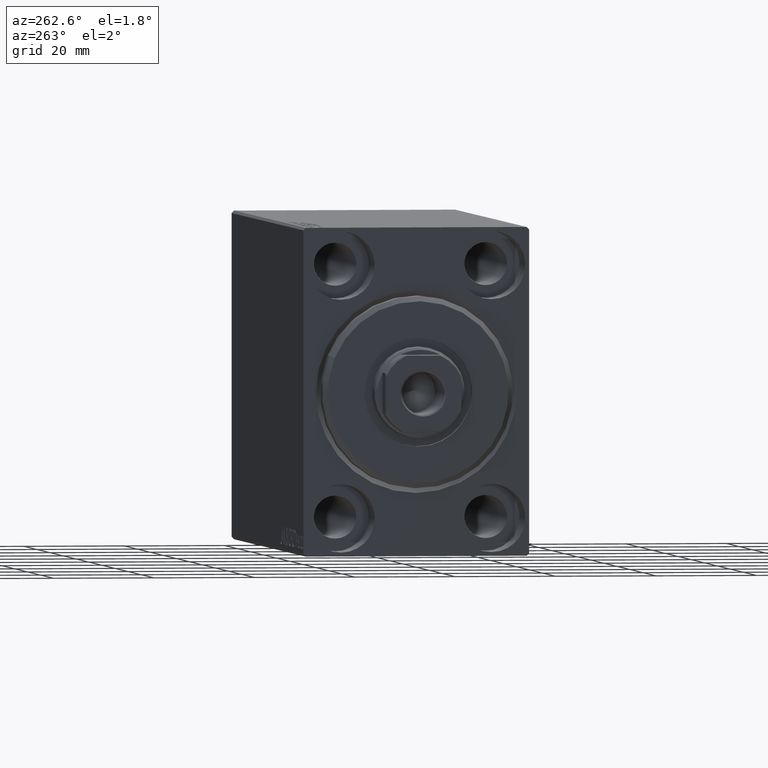
[diagram: clean part render]
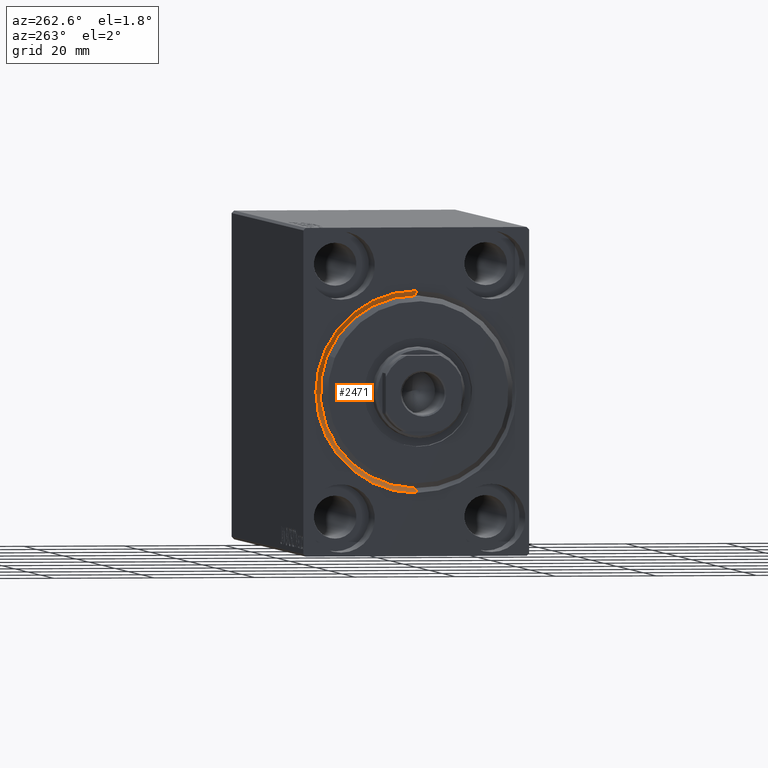
[diagram: same view with one face highlighted and labeled with its STEP entity id]
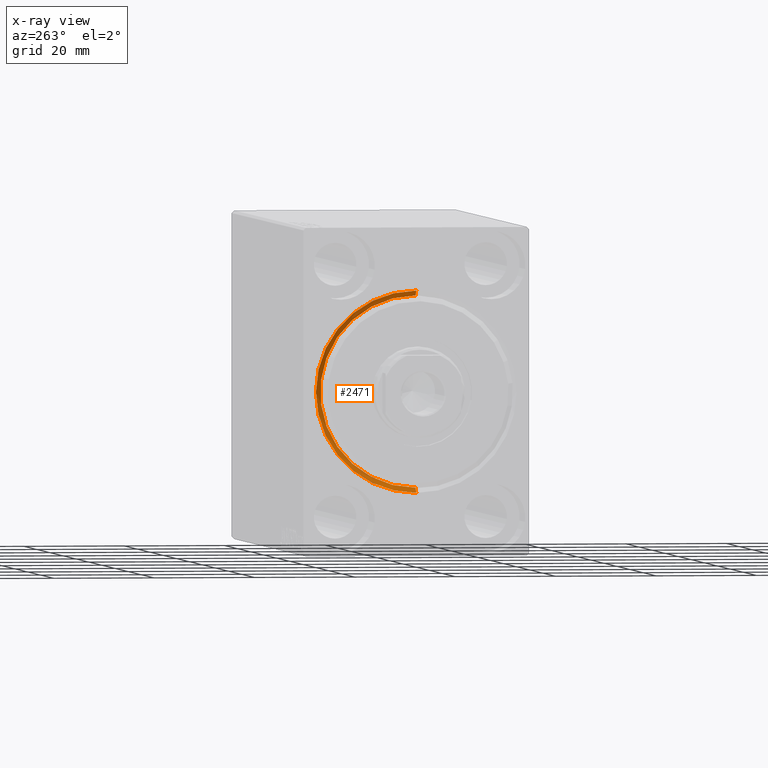
[diagram: x-ray of the same camera — body ghosted, the highlighted face saturated]
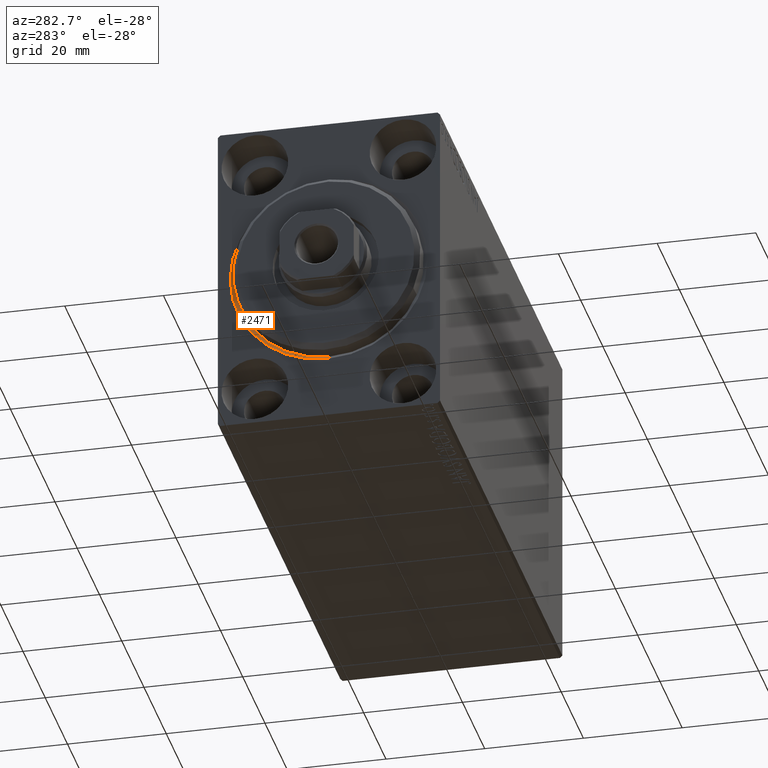
[diagram: same view with one face highlighted and labeled with its STEP entity id]
A machine part, auxiliary view. The second image highlights one B-rep face of the part: STEP entity #2471.
The next image is the same camera in x-ray: the body ghosted, the highlighted face saturated — about 0% of this face is hidden behind the body in this view.
A second angle (auxiliary view) of the same face is appended — the face is thin or edge-on in the first view.
In plain terms, the highlighted conical surface has half-angle 45 deg.
Its self-contained STEP definition (entity closure, byte-faithful):
#147 = LINE ( 'NONE', #14283, #2733 ) ;
#799 = ORIENTED_EDGE ( 'NONE', *, *, #28710, .F. ) ;
#1025 = EDGE_CURVE ( 'NONE', #5317, #37700, #35355, .T. ) ;
#1392 = CONICAL_SURFACE ( 'NONE', #28284, 19.00000000000000000, 0.7853981633974500554 ) ;
#1593 = CARTESIAN_POINT ( 'NONE',  ( 1.000000000000000888, 0.000000000000000000, 0.000000000000000000 ) ) ;
#2033 = DIRECTION ( 'NONE',  ( 0.000000000000000000, 0.000000000000000000, 1.000000000000000000 ) ) ;
#2471 = ADVANCED_FACE ( 'NONE', ( #22194 ), #1392, .F. ) ;
#2733 = VECTOR ( 'NONE', #10951, 1000.000000000000000 ) ;
#4598 = CARTESIAN_POINT ( 'NONE',  ( 1.000000000000000888, 0.000000000000000000, 19.00000000000000000 ) ) ;
#5317 = VERTEX_POINT ( 'NONE', #19717 ) ;
#6500 = DIRECTION ( 'NONE',  ( -1.000000000000000000, 0.000000000000000000, 0.000000000000000000 ) ) ;
#9013 = EDGE_CURVE ( 'NONE', #30367, #11248, #147, .T. ) ;
#9757 = ORIENTED_EDGE ( 'NONE', *, *, #9013, .T. ) ;
#10257 = CARTESIAN_POINT ( 'NONE',  ( 1.000000000000000888, 0.000000000000000000, 0.000000000000000000 ) ) ;
#10951 = DIRECTION ( 'NONE',  ( -0.7071067811865463515, 0.000000000000000000, 0.7071067811865487940 ) ) ;
#11248 = VERTEX_POINT ( 'NONE', #37475 ) ;
#12116 = CARTESIAN_POINT ( 'NONE',  ( 1.000000000000000888, 2.326828918379970970E-15, -19.00000000000000000 ) ) ;
#13352 = VECTOR ( 'NONE', #38676, 1000.000000000000000 ) ;
#13897 = CIRCLE ( 'NONE', #23093, 20.00000000000000355 ) ;
#14283 = CARTESIAN_POINT ( 'NONE',  ( 1.000000000000000888, 0.000000000000000000, 19.00000000000000000 ) ) ;
#15124 = DIRECTION ( 'NONE',  ( -1.000000000000000000, 0.000000000000000000, 0.000000000000000000 ) ) ;
#15774 = CIRCLE ( 'NONE', #28486, 19.00000000000000000 ) ;
#16312 = CARTESIAN_POINT ( 'NONE',  ( 0.000000000000000000, 2.449293598294706907E-15, -20.00000000000000355 ) ) ;
#16547 = DIRECTION ( 'NONE',  ( 0.000000000000000000, 0.000000000000000000, -1.000000000000000000 ) ) ;
#18817 = ORIENTED_EDGE ( 'NONE', *, *, #1025, .F. ) ;
#19717 = CARTESIAN_POINT ( 'NONE',  ( 1.000000000000000888, 2.326828918379970970E-15, -19.00000000000000000 ) ) ;
#22194 = FACE_OUTER_BOUND ( 'NONE', #35679, .T. ) ;
#23093 = AXIS2_PLACEMENT_3D ( 'NONE', #40444, #26310, #16547 ) ;
#23194 = ORIENTED_EDGE ( 'NONE', *, *, #40251, .F. ) ;
#23773 = DIRECTION ( 'NONE',  ( 0.000000000000000000, 0.000000000000000000, -1.000000000000000000 ) ) ;
#26310 = DIRECTION ( 'NONE',  ( 1.000000000000000000, 0.000000000000000000, 0.000000000000000000 ) ) ;
#28284 = AXIS2_PLACEMENT_3D ( 'NONE', #1593, #15124, #2033 ) ;
#28486 = AXIS2_PLACEMENT_3D ( 'NONE', #10257, #6500, #23773 ) ;
#28710 = EDGE_CURVE ( 'NONE', #30367, #5317, #15774, .T. ) ;
#30367 = VERTEX_POINT ( 'NONE', #4598 ) ;
#35355 = LINE ( 'NONE', #12116, #13352 ) ;
#35679 = EDGE_LOOP ( 'NONE', ( #18817, #799, #9757, #23194 ) ) ;
#37475 = CARTESIAN_POINT ( 'NONE',  ( 0.000000000000000000, 0.000000000000000000, 20.00000000000000355 ) ) ;
#37700 = VERTEX_POINT ( 'NONE', #16312 ) ;
#38676 = DIRECTION ( 'NONE',  ( -0.7071067811865463515, 8.659560562354948882E-17, -0.7071067811865487940 ) ) ;
#40251 = EDGE_CURVE ( 'NONE', #37700, #11248, #13897, .T. ) ;
#40444 = CARTESIAN_POINT ( 'NONE',  ( 0.000000000000000000, 0.000000000000000000, 0.000000000000000000 ) ) ;